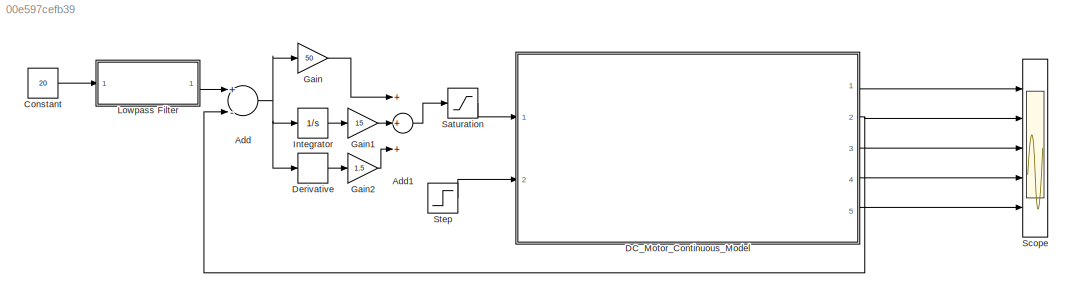
MODEL slx_00e597cefb39
KIND model
CONFIG AbsTol = auto
CONFIG FixedStep = auto
CONFIG MaxStep = auto
CONFIG MinStep = auto
CONFIG RelTol = 1e-3
CONFIG SampleTimeConstraint = Unconstrained
CONFIG Solver = ode45
CONFIG SolverMode = Auto
CONFIG SolverName = ode45
CONFIG StartTime = 0.0
CONFIG StopTime = 10.0
BLOCK [Sum] Add
  InputSameDT = off
  Inputs = +-
  OutDataTypeStr = Inherit: Inherit via internal rule
  Ports = [2, 1]
  SaturateOnIntegerOverflow = off
BLOCK [Sum] Add1
  InputSameDT = off
  Inputs = +++
  OutDataTypeStr = Inherit: Inherit via internal rule
  Ports = [3, 1]
  SaturateOnIntegerOverflow = off
BLOCK [Constant] Constant
  Value = 20
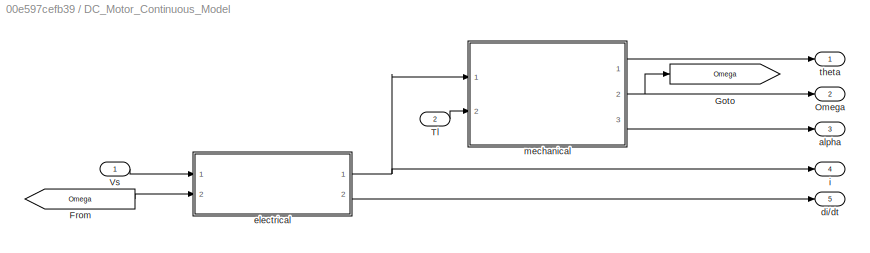
BLOCK [SubSystem] DC_Motor_Continuous_Model
  Ports = [2, 5]
  RequestExecContextInheritance = off
BLOCK [From] DC_Motor_Continuous_Model/From
  GotoTag = Omega
BLOCK [Goto] DC_Motor_Continuous_Model/Goto
  GotoTag = Omega
BLOCK [Outport] DC_Motor_Continuous_Model/Omega
  IconDisplay = Port number
  Port = 2
BLOCK [Inport] DC_Motor_Continuous_Model/Tl
  IconDisplay = Port number
  Port = 2
BLOCK [Inport] DC_Motor_Continuous_Model/Vs
  IconDisplay = Port number
BLOCK [Outport] DC_Motor_Continuous_Model/alpha
  IconDisplay = Port number
  Port = 3
BLOCK [Outport] DC_Motor_Continuous_Model/di//dt
  IconDisplay = Port number
  Port = 5
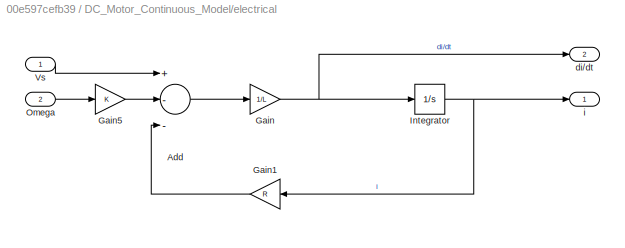
BLOCK [SubSystem] DC_Motor_Continuous_Model/electrical
  Ports = [2, 2]
  RequestExecContextInheritance = off
BLOCK [Sum] DC_Motor_Continuous_Model/electrical/Add
  InputSameDT = off
  Inputs = +--
  OutDataTypeStr = Inherit: Inherit via internal rule
  Ports = [3, 1]
  SaturateOnIntegerOverflow = off
BLOCK [Gain] DC_Motor_Continuous_Model/electrical/Gain
  Gain = 1/L
  OutDataTypeStr = Inherit: Inherit via internal rule
  ParamDataTypeStr = Inherit: Inherit via internal rule
  SaturateOnIntegerOverflow = off
BLOCK [Gain] DC_Motor_Continuous_Model/electrical/Gain1
  Gain = R
  OutDataTypeStr = Inherit: Inherit via internal rule
  ParamDataTypeStr = Inherit: Inherit via internal rule
  SaturateOnIntegerOverflow = off
BLOCK [Gain] DC_Motor_Continuous_Model/electrical/Gain5
  Gain = K
  OutDataTypeStr = Inherit: Inherit via internal rule
  ParamDataTypeStr = Inherit: Inherit via internal rule
  SaturateOnIntegerOverflow = off
BLOCK [Integrator] DC_Motor_Continuous_Model/electrical/Integrator
  Ports = [1, 1]
BLOCK [Inport] DC_Motor_Continuous_Model/electrical/Omega
  IconDisplay = Port number
  Port = 2
BLOCK [Inport] DC_Motor_Continuous_Model/electrical/Vs
  IconDisplay = Port number
BLOCK [Outport] DC_Motor_Continuous_Model/electrical/di//dt
  IconDisplay = Port number
  Port = 2
BLOCK [Outport] DC_Motor_Continuous_Model/electrical/i
  IconDisplay = Port number
BLOCK [Outport] DC_Motor_Continuous_Model/i
  IconDisplay = Port number
  Port = 4
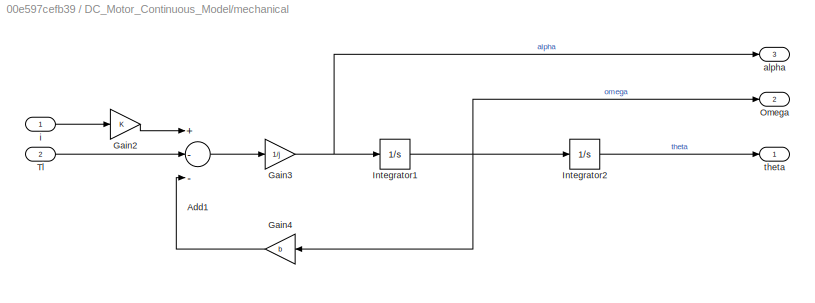
BLOCK [SubSystem] DC_Motor_Continuous_Model/mechanical
  Ports = [2, 3]
  RequestExecContextInheritance = off
BLOCK [Sum] DC_Motor_Continuous_Model/mechanical/Add1
  InputSameDT = off
  Inputs = +--
  OutDataTypeStr = Inherit: Inherit via internal rule
  Ports = [3, 1]
  SaturateOnIntegerOverflow = off
BLOCK [Gain] DC_Motor_Continuous_Model/mechanical/Gain2
  Gain = K
  OutDataTypeStr = Inherit: Inherit via internal rule
  ParamDataTypeStr = Inherit: Inherit via internal rule
  SaturateOnIntegerOverflow = off
BLOCK [Gain] DC_Motor_Continuous_Model/mechanical/Gain3
  Gain = 1/j
  OutDataTypeStr = Inherit: Inherit via internal rule
  ParamDataTypeStr = Inherit: Inherit via internal rule
  SaturateOnIntegerOverflow = off
BLOCK [Gain] DC_Motor_Continuous_Model/mechanical/Gain4
  Gain = b
  OutDataTypeStr = Inherit: Inherit via internal rule
  ParamDataTypeStr = Inherit: Inherit via internal rule
  SaturateOnIntegerOverflow = off
BLOCK [Integrator] DC_Motor_Continuous_Model/mechanical/Integrator1
  Ports = [1, 1]
BLOCK [Integrator] DC_Motor_Continuous_Model/mechanical/Integrator2
  Ports = [1, 1]
BLOCK [Outport] DC_Motor_Continuous_Model/mechanical/Omega
  IconDisplay = Port number
  Port = 2
BLOCK [Inport] DC_Motor_Continuous_Model/mechanical/Tl
  IconDisplay = Port number
  Port = 2
BLOCK [Outport] DC_Motor_Continuous_Model/mechanical/alpha
  IconDisplay = Port number
  Port = 3
BLOCK [Inport] DC_Motor_Continuous_Model/mechanical/i
  IconDisplay = Port number
BLOCK [Outport] DC_Motor_Continuous_Model/mechanical/theta
  IconDisplay = Port number
BLOCK [Outport] DC_Motor_Continuous_Model/theta
  IconDisplay = Port number
BLOCK [Derivative] Derivative
BLOCK [Gain] Gain
  Gain = 50
  OutDataTypeStr = Inherit: Inherit via internal rule
  ParamDataTypeStr = Inherit: Inherit via internal rule
  SaturateOnIntegerOverflow = off
BLOCK [Gain] Gain1
  Gain = 15
  OutDataTypeStr = Inherit: Inherit via internal rule
  ParamDataTypeStr = Inherit: Inherit via internal rule
  SaturateOnIntegerOverflow = off
BLOCK [Gain] Gain2
  Gain = 1.5
  OutDataTypeStr = Inherit: Inherit via internal rule
  ParamDataTypeStr = Inherit: Inherit via internal rule
  SaturateOnIntegerOverflow = off
BLOCK [Integrator] Integrator
  Ports = [1, 1]
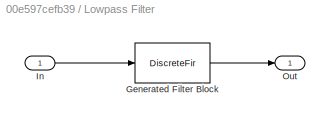
BLOCK [SubSystem] Lowpass Filter
  CopyFcn = fdesignblkfcn(gcbh, {'CopyFcn'});
  DialogController = fdesignblkfcn
  InitFcn = fdesignblkfcn(gcbh, {'InitFcn'});
  Ports = [1, 1]
  RequestExecContextInheritance = off
  UserDataPersistent = on
BLOCK [DiscreteFir] Lowpass Filter/Generated Filter Block
  Coefficients = [-0.001565521559079915 0.0051422462219556271 -0.012763948200316441 0.02688191136851514 -0.051583684792804056 0.095933131376735231 -0.19191236389001448 0.62959541978942535 0.62959541978942535 -0.19191236389001448 0.095933131376735231 -0.051583684792804056 0.02688191136851514 -0.012763948200316441 0.0051422462219556271 -0.001565521559079915]
  InputProcessing = Columns as channels (frame based)
  Ports = [1, 1]
  Tag = BlockMethodSubSystem
BLOCK [Inport] Lowpass Filter/In
  IconDisplay = Port number
BLOCK [Outport] Lowpass Filter/Out
  IconDisplay = Port number
BLOCK [Saturate] Saturation
  InputPortMap = u0
  LowerLimit = 0
  Ports = [1, 1]
  UpperLimit = 100
BLOCK [Scope] Scope
  Floating = off
  LimitDataPoints = off
  NumInputPorts = 5
  Ports = [5]
  YMax = 5~5~5~5~5
  YMin = -5~-5~-5~-5~-5
BLOCK [Step] Step
  SampleTime = 0
  Time = 5
LINE Add1:1 -> Saturation:1
NET Add:1 -> Derivative:1, Gain:1, Integrator:1
LINE Constant:1 -> Lowpass Filter:1
LINE DC_Motor_Continuous_Model/From:1 -> DC_Motor_Continuous_Model/electrical:2
LINE DC_Motor_Continuous_Model/Tl:1 -> DC_Motor_Continuous_Model/mechanical:2
LINE DC_Motor_Continuous_Model/Vs:1 -> DC_Motor_Continuous_Model/electrical:1
LINE DC_Motor_Continuous_Model/electrical/Add:1 -> DC_Motor_Continuous_Model/electrical/Gain:1
LINE DC_Motor_Continuous_Model/electrical/Gain1:1 -> DC_Motor_Continuous_Model/electrical/Add:3
LINE DC_Motor_Continuous_Model/electrical/Gain5:1 -> DC_Motor_Continuous_Model/electrical/Add:2
NET DC_Motor_Continuous_Model/electrical/Gain:1 -> DC_Motor_Continuous_Model/electrical/Integrator:1, DC_Motor_Continuous_Model/electrical/di//dt:1
NET DC_Motor_Continuous_Model/electrical/Integrator:1 -> DC_Motor_Continuous_Model/electrical/Gain1:1, DC_Motor_Continuous_Model/electrical/i:1
LINE DC_Motor_Continuous_Model/electrical/Omega:1 -> DC_Motor_Continuous_Model/electrical/Gain5:1
LINE DC_Motor_Continuous_Model/electrical/Vs:1 -> DC_Motor_Continuous_Model/electrical/Add:1
NET DC_Motor_Continuous_Model/electrical:1 -> DC_Motor_Continuous_Model/i:1, DC_Motor_Continuous_Model/mechanical:1
LINE DC_Motor_Continuous_Model/electrical:2 -> DC_Motor_Continuous_Model/di//dt:1
LINE DC_Motor_Continuous_Model/mechanical/Add1:1 -> DC_Motor_Continuous_Model/mechanical/Gain3:1
LINE DC_Motor_Continuous_Model/mechanical/Gain2:1 -> DC_Motor_Continuous_Model/mechanical/Add1:1
NET DC_Motor_Continuous_Model/mechanical/Gain3:1 -> DC_Motor_Continuous_Model/mechanical/Integrator1:1, DC_Motor_Continuous_Model/mechanical/alpha:1
LINE DC_Motor_Continuous_Model/mechanical/Gain4:1 -> DC_Motor_Continuous_Model/mechanical/Add1:3
NET DC_Motor_Continuous_Model/mechanical/Integrator1:1 -> DC_Motor_Continuous_Model/mechanical/Gain4:1, DC_Motor_Continuous_Model/mechanical/Integrator2:1, DC_Motor_Continuous_Model/mechanical/Omega:1
LINE DC_Motor_Continuous_Model/mechanical/Integrator2:1 -> DC_Motor_Continuous_Model/mechanical/theta:1
LINE DC_Motor_Continuous_Model/mechanical/Tl:1 -> DC_Motor_Continuous_Model/mechanical/Add1:2
LINE DC_Motor_Continuous_Model/mechanical/i:1 -> DC_Motor_Continuous_Model/mechanical/Gain2:1
LINE DC_Motor_Continuous_Model/mechanical:1 -> DC_Motor_Continuous_Model/theta:1
NET DC_Motor_Continuous_Model/mechanical:2 -> DC_Motor_Continuous_Model/Goto:1, DC_Motor_Continuous_Model/Omega:1
LINE DC_Motor_Continuous_Model/mechanical:3 -> DC_Motor_Continuous_Model/alpha:1
LINE DC_Motor_Continuous_Model:1 -> Scope:1
NET DC_Motor_Continuous_Model:2 -> Add:2, Scope:2
LINE DC_Motor_Continuous_Model:3 -> Scope:3
LINE DC_Motor_Continuous_Model:4 -> Scope:4
LINE DC_Motor_Continuous_Model:5 -> Scope:5
LINE Derivative:1 -> Gain2:1
LINE Gain1:1 -> Add1:2
LINE Gain2:1 -> Add1:3
LINE Gain:1 -> Add1:1
LINE Integrator:1 -> Gain1:1
LINE Lowpass Filter:1 -> Add:1
LINE Saturation:1 -> DC_Motor_Continuous_Model:1
LINE Step:1 -> DC_Motor_Continuous_Model:2
note: NET lines group one-source signal fan-out (src -> all destinations, sorted); 1:1 wires keep LINE
